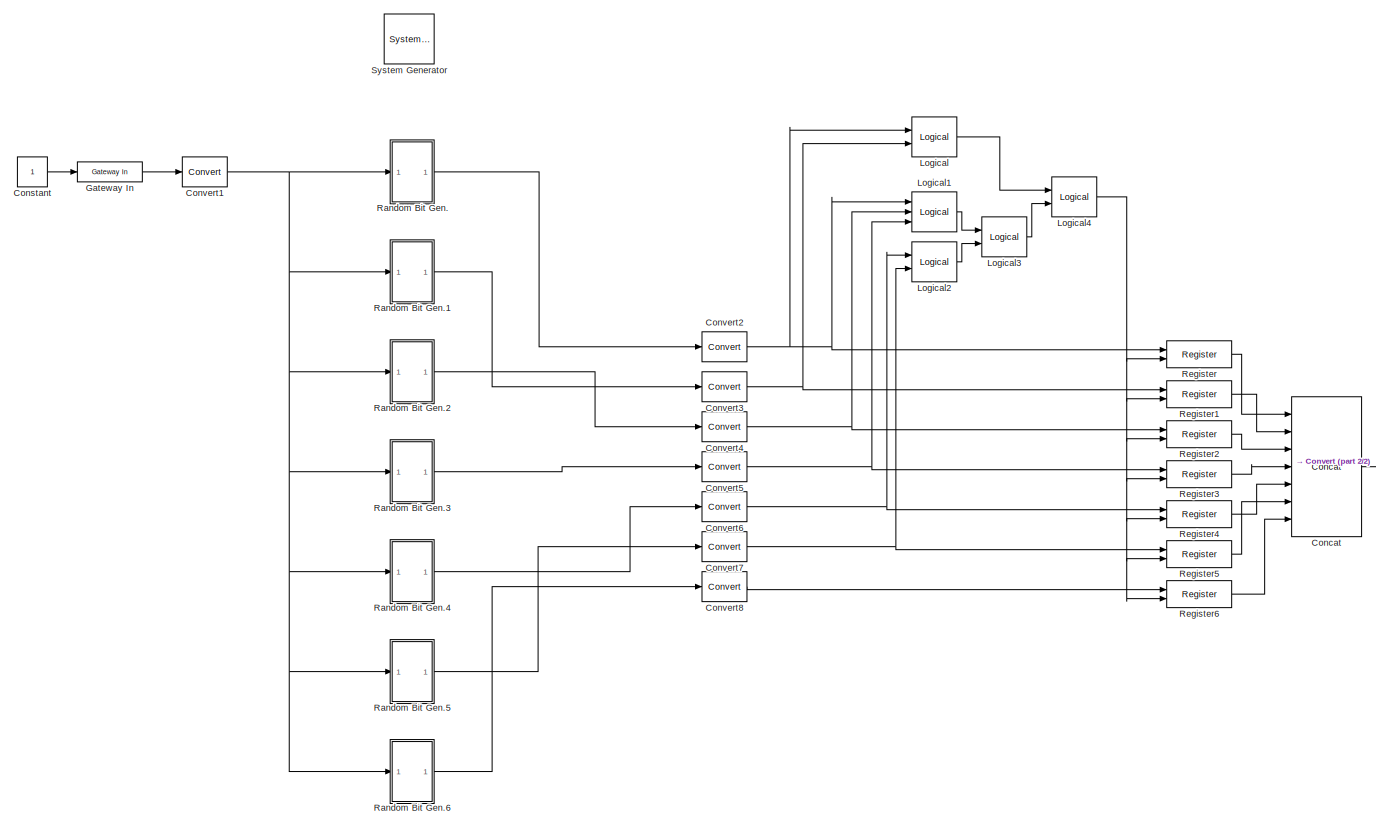
[diagram: root canvas - part 1/2, most of the canvas]
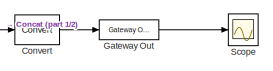
[diagram: root canvas - part 2/2, middle right region]
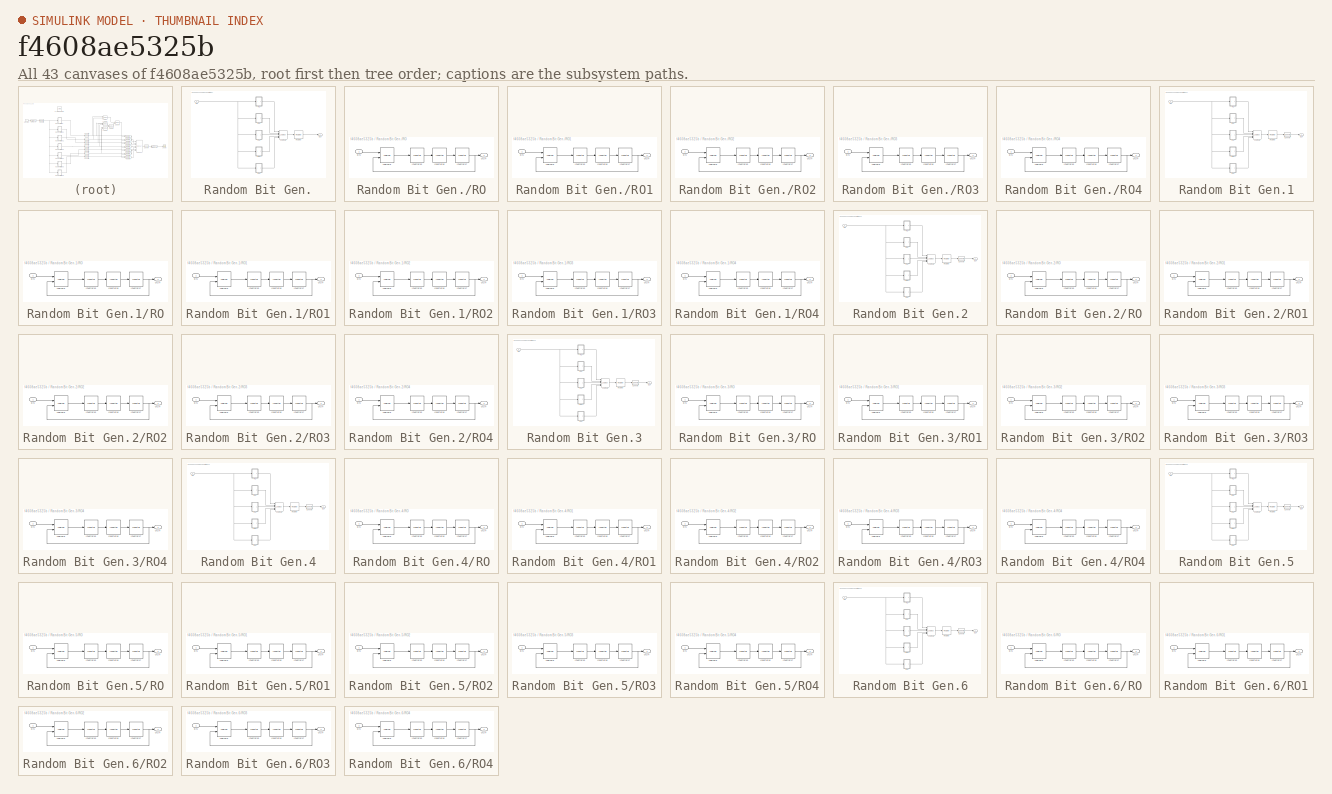
[diagram: thumbnail index - all 43 canvases of the model, root first then tree order]
MODEL slx_f4608ae5325b
KIND model
CONFIG AbsTol = auto
CONFIG EnableMultiTasking = off
CONFIG FixedStep = auto
CONFIG MaxStep = auto
CONFIG MinStep = auto
CONFIG RelTol = 1e-3
CONFIG SampleTimeConstraint = Unconstrained
CONFIG Solver = VariableStepAuto
CONFIG SolverName = VariableStepAuto
CONFIG StartTime = 0.0
CONFIG StopTime = 100.0
BLOCK [Reference]  System Generator  REF=xbsIndex_r4/ System Generator
  AttributesFormatString = System\nGenerator
  Ports = []
  SourceBlock = xbsIndex_r4/ System Generator
  SourceType = Xilinx System Generator Block
  Tag = genX
  UserDataPersistent = on
BLOCK [Reference] Concat  REF=xbsIndex_r4/Concat
  Ports = [7, 1]
  SourceBlock = xbsIndex_r4/Concat
  SourceType = Xilinx Bus Concatenator Block
BLOCK [Constant] Constant
BLOCK [Reference] Convert  REF=xbsIndex_r4/Convert
  Ports = [1, 1]
  SourceBlock = xbsIndex_r4/Convert
  SourceType = Xilinx Type Converter Block
BLOCK [Reference] Convert1  REF=xbsIndex_r4/Convert
  Ports = [1, 1]
  SourceBlock = xbsIndex_r4/Convert
  SourceType = Xilinx Type Converter Block
BLOCK [Reference] Convert2  REF=xbsIndex_r4/Convert
  Ports = [1, 1]
  SourceBlock = xbsIndex_r4/Convert
  SourceType = Xilinx Type Converter Block
BLOCK [Reference] Convert3  REF=xbsIndex_r4/Convert
  Ports = [1, 1]
  SourceBlock = xbsIndex_r4/Convert
  SourceType = Xilinx Type Converter Block
BLOCK [Reference] Convert4  REF=xbsIndex_r4/Convert
  Ports = [1, 1]
  SourceBlock = xbsIndex_r4/Convert
  SourceType = Xilinx Type Converter Block
BLOCK [Reference] Convert5  REF=xbsIndex_r4/Convert
  Ports = [1, 1]
  SourceBlock = xbsIndex_r4/Convert
  SourceType = Xilinx Type Converter Block
BLOCK [Reference] Convert6  REF=xbsIndex_r4/Convert
  Ports = [1, 1]
  SourceBlock = xbsIndex_r4/Convert
  SourceType = Xilinx Type Converter Block
BLOCK [Reference] Convert7  REF=xbsIndex_r4/Convert
  Ports = [1, 1]
  SourceBlock = xbsIndex_r4/Convert
  SourceType = Xilinx Type Converter Block
BLOCK [Reference] Convert8  REF=xbsIndex_r4/Convert
  Ports = [1, 1]
  SourceBlock = xbsIndex_r4/Convert
  SourceType = Xilinx Type Converter Block
BLOCK [Reference] Gateway In  REF=xbsIndex_r4/Gateway In
  Ports = [1, 1]
  SourceBlock = xbsIndex_r4/Gateway In
  SourceType = Xilinx Gateway In Block
BLOCK [Reference] Gateway Out  REF=xbsIndex_r4/Gateway Out
  Ports = [1, 1]
  SourceBlock = xbsIndex_r4/Gateway Out
  SourceType = Xilinx Gateway Out Block
BLOCK [Reference] Logical  REF=xbsIndex_r4/Logical
  Ports = [2, 1]
  SourceBlock = xbsIndex_r4/Logical
  SourceType = Xilinx Logical Block Block
BLOCK [Reference] Logical1  REF=xbsIndex_r4/Logical
  Ports = [3, 1]
  SourceBlock = xbsIndex_r4/Logical
  SourceType = Xilinx Logical Block Block
BLOCK [Reference] Logical2  REF=xbsIndex_r4/Logical
  Ports = [2, 1]
  SourceBlock = xbsIndex_r4/Logical
  SourceType = Xilinx Logical Block Block
BLOCK [Reference] Logical3  REF=xbsIndex_r4/Logical
  Ports = [2, 1]
  SourceBlock = xbsIndex_r4/Logical
  SourceType = Xilinx Logical Block Block
BLOCK [Reference] Logical4  REF=xbsIndex_r4/Logical
  Ports = [2, 1]
  SourceBlock = xbsIndex_r4/Logical
  SourceType = Xilinx Logical Block Block
BLOCK [SubSystem] Random Bit Gen.
  Ports = [1, 1]
  RequestExecContextInheritance = off
BLOCK [Inport] Random Bit Gen./EN
BLOCK [Reference] Random Bit Gen./Logical1  REF=xbsIndex_r4/Logical
  Ports = [5, 1]
  SourceBlock = xbsIndex_r4/Logical
  SourceType = Xilinx Logical Block Block
BLOCK [Outport] Random Bit Gen./OUT
BLOCK [SubSystem] Random Bit Gen./RO
  Ports = [1, 1]
  RequestExecContextInheritance = off
BLOCK [Inport] Random Bit Gen./RO/EN
BLOCK [Reference] Random Bit Gen./RO/Inverter15  REF=xbsIndex_r4/Inverter
  Ports = [1, 1]
  SourceBlock = xbsIndex_r4/Inverter
  SourceType = Xilinx Inverter Block
BLOCK [Reference] Random Bit Gen./RO/Inverter16  REF=xbsIndex_r4/Inverter
  Ports = [1, 1]
  SourceBlock = xbsIndex_r4/Inverter
  SourceType = Xilinx Inverter Block
BLOCK [Reference] Random Bit Gen./RO/Inverter17  REF=xbsIndex_r4/Inverter
  Ports = [1, 1]
  SourceBlock = xbsIndex_r4/Inverter
  SourceType = Xilinx Inverter Block
BLOCK [Reference] Random Bit Gen./RO/Logical6  REF=xbsIndex_r4/Logical
  Ports = [2, 1]
  SourceBlock = xbsIndex_r4/Logical
  SourceType = Xilinx Logical Block Block
BLOCK [Outport] Random Bit Gen./RO/OUT
BLOCK [SubSystem] Random Bit Gen./RO1
  Ports = [1, 1]
  RequestExecContextInheritance = off
BLOCK [Inport] Random Bit Gen./RO1/EN
BLOCK [Reference] Random Bit Gen./RO1/Inverter15  REF=xbsIndex_r4/Inverter
  Ports = [1, 1]
  SourceBlock = xbsIndex_r4/Inverter
  SourceType = Xilinx Inverter Block
BLOCK [Reference] Random Bit Gen./RO1/Inverter16  REF=xbsIndex_r4/Inverter
  Ports = [1, 1]
  SourceBlock = xbsIndex_r4/Inverter
  SourceType = Xilinx Inverter Block
BLOCK [Reference] Random Bit Gen./RO1/Inverter17  REF=xbsIndex_r4/Inverter
  Ports = [1, 1]
  SourceBlock = xbsIndex_r4/Inverter
  SourceType = Xilinx Inverter Block
BLOCK [Reference] Random Bit Gen./RO1/Logical6  REF=xbsIndex_r4/Logical
  Ports = [2, 1]
  SourceBlock = xbsIndex_r4/Logical
  SourceType = Xilinx Logical Block Block
BLOCK [Outport] Random Bit Gen./RO1/OUT
BLOCK [SubSystem] Random Bit Gen./RO2
  Ports = [1, 1]
  RequestExecContextInheritance = off
BLOCK [Inport] Random Bit Gen./RO2/EN
BLOCK [Reference] Random Bit Gen./RO2/Inverter15  REF=xbsIndex_r4/Inverter
  Ports = [1, 1]
  SourceBlock = xbsIndex_r4/Inverter
  SourceType = Xilinx Inverter Block
BLOCK [Reference] Random Bit Gen./RO2/Inverter16  REF=xbsIndex_r4/Inverter
  Ports = [1, 1]
  SourceBlock = xbsIndex_r4/Inverter
  SourceType = Xilinx Inverter Block
BLOCK [Reference] Random Bit Gen./RO2/Inverter17  REF=xbsIndex_r4/Inverter
  Ports = [1, 1]
  SourceBlock = xbsIndex_r4/Inverter
  SourceType = Xilinx Inverter Block
BLOCK [Reference] Random Bit Gen./RO2/Logical6  REF=xbsIndex_r4/Logical
  Ports = [2, 1]
  SourceBlock = xbsIndex_r4/Logical
  SourceType = Xilinx Logical Block Block
BLOCK [Outport] Random Bit Gen./RO2/OUT
BLOCK [SubSystem] Random Bit Gen./RO3
  Ports = [1, 1]
  RequestExecContextInheritance = off
BLOCK [Inport] Random Bit Gen./RO3/EN
BLOCK [Reference] Random Bit Gen./RO3/Inverter15  REF=xbsIndex_r4/Inverter
  Ports = [1, 1]
  SourceBlock = xbsIndex_r4/Inverter
  SourceType = Xilinx Inverter Block
BLOCK [Reference] Random Bit Gen./RO3/Inverter16  REF=xbsIndex_r4/Inverter
  Ports = [1, 1]
  SourceBlock = xbsIndex_r4/Inverter
  SourceType = Xilinx Inverter Block
BLOCK [Reference] Random Bit Gen./RO3/Inverter17  REF=xbsIndex_r4/Inverter
  Ports = [1, 1]
  SourceBlock = xbsIndex_r4/Inverter
  SourceType = Xilinx Inverter Block
BLOCK [Reference] Random Bit Gen./RO3/Logical6  REF=xbsIndex_r4/Logical
  Ports = [2, 1]
  SourceBlock = xbsIndex_r4/Logical
  SourceType = Xilinx Logical Block Block
BLOCK [Outport] Random Bit Gen./RO3/OUT
BLOCK [SubSystem] Random Bit Gen./RO4
  Ports = [1, 1]
  RequestExecContextInheritance = off
BLOCK [Inport] Random Bit Gen./RO4/EN
BLOCK [Reference] Random Bit Gen./RO4/Inverter15  REF=xbsIndex_r4/Inverter
  Ports = [1, 1]
  SourceBlock = xbsIndex_r4/Inverter
  SourceType = Xilinx Inverter Block
BLOCK [Reference] Random Bit Gen./RO4/Inverter16  REF=xbsIndex_r4/Inverter
  Ports = [1, 1]
  SourceBlock = xbsIndex_r4/Inverter
  SourceType = Xilinx Inverter Block
BLOCK [Reference] Random Bit Gen./RO4/Inverter17  REF=xbsIndex_r4/Inverter
  Ports = [1, 1]
  SourceBlock = xbsIndex_r4/Inverter
  SourceType = Xilinx Inverter Block
BLOCK [Reference] Random Bit Gen./RO4/Logical6  REF=xbsIndex_r4/Logical
  Ports = [2, 1]
  SourceBlock = xbsIndex_r4/Logical
  SourceType = Xilinx Logical Block Block
BLOCK [Outport] Random Bit Gen./RO4/OUT
BLOCK [Reference] Random Bit Gen./Register  REF=xbsIndex_r4/Register
  Ports = [1, 1]
  SourceBlock = xbsIndex_r4/Register
  SourceType = Xilinx Register Block
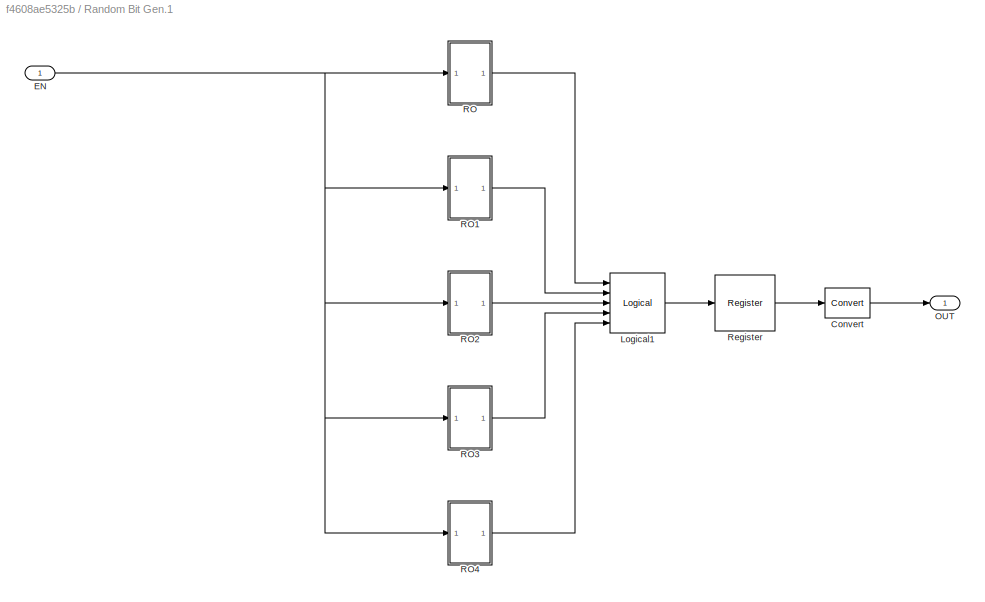
BLOCK [SubSystem] Random Bit Gen.1
  Ports = [1, 1]
  RequestExecContextInheritance = off
BLOCK [Reference] Random Bit Gen.1/Convert  REF=xbsIndex_r4/Convert
  Ports = [1, 1]
  SourceBlock = xbsIndex_r4/Convert
  SourceType = Xilinx Type Converter Block
BLOCK [Inport] Random Bit Gen.1/EN
BLOCK [Reference] Random Bit Gen.1/Logical1  REF=xbsIndex_r4/Logical
  Ports = [5, 1]
  SourceBlock = xbsIndex_r4/Logical
  SourceType = Xilinx Logical Block Block
BLOCK [Outport] Random Bit Gen.1/OUT
BLOCK [SubSystem] Random Bit Gen.1/RO
  Ports = [1, 1]
  RequestExecContextInheritance = off
BLOCK [Inport] Random Bit Gen.1/RO/EN
BLOCK [Reference] Random Bit Gen.1/RO/Inverter15  REF=xbsIndex_r4/Inverter
  Ports = [1, 1]
  SourceBlock = xbsIndex_r4/Inverter
  SourceType = Xilinx Inverter Block
BLOCK [Reference] Random Bit Gen.1/RO/Inverter16  REF=xbsIndex_r4/Inverter
  Ports = [1, 1]
  SourceBlock = xbsIndex_r4/Inverter
  SourceType = Xilinx Inverter Block
BLOCK [Reference] Random Bit Gen.1/RO/Inverter17  REF=xbsIndex_r4/Inverter
  Ports = [1, 1]
  SourceBlock = xbsIndex_r4/Inverter
  SourceType = Xilinx Inverter Block
BLOCK [Reference] Random Bit Gen.1/RO/Logical6  REF=xbsIndex_r4/Logical
  Ports = [2, 1]
  SourceBlock = xbsIndex_r4/Logical
  SourceType = Xilinx Logical Block Block
BLOCK [Outport] Random Bit Gen.1/RO/OUT
BLOCK [SubSystem] Random Bit Gen.1/RO1
  Ports = [1, 1]
  RequestExecContextInheritance = off
BLOCK [Inport] Random Bit Gen.1/RO1/EN
BLOCK [Reference] Random Bit Gen.1/RO1/Inverter15  REF=xbsIndex_r4/Inverter
  Ports = [1, 1]
  SourceBlock = xbsIndex_r4/Inverter
  SourceType = Xilinx Inverter Block
BLOCK [Reference] Random Bit Gen.1/RO1/Inverter16  REF=xbsIndex_r4/Inverter
  Ports = [1, 1]
  SourceBlock = xbsIndex_r4/Inverter
  SourceType = Xilinx Inverter Block
BLOCK [Reference] Random Bit Gen.1/RO1/Inverter17  REF=xbsIndex_r4/Inverter
  Ports = [1, 1]
  SourceBlock = xbsIndex_r4/Inverter
  SourceType = Xilinx Inverter Block
BLOCK [Reference] Random Bit Gen.1/RO1/Logical6  REF=xbsIndex_r4/Logical
  Ports = [2, 1]
  SourceBlock = xbsIndex_r4/Logical
  SourceType = Xilinx Logical Block Block
BLOCK [Outport] Random Bit Gen.1/RO1/OUT
BLOCK [SubSystem] Random Bit Gen.1/RO2
  Ports = [1, 1]
  RequestExecContextInheritance = off
BLOCK [Inport] Random Bit Gen.1/RO2/EN
BLOCK [Reference] Random Bit Gen.1/RO2/Inverter15  REF=xbsIndex_r4/Inverter
  Ports = [1, 1]
  SourceBlock = xbsIndex_r4/Inverter
  SourceType = Xilinx Inverter Block
BLOCK [Reference] Random Bit Gen.1/RO2/Inverter16  REF=xbsIndex_r4/Inverter
  Ports = [1, 1]
  SourceBlock = xbsIndex_r4/Inverter
  SourceType = Xilinx Inverter Block
BLOCK [Reference] Random Bit Gen.1/RO2/Inverter17  REF=xbsIndex_r4/Inverter
  Ports = [1, 1]
  SourceBlock = xbsIndex_r4/Inverter
  SourceType = Xilinx Inverter Block
BLOCK [Reference] Random Bit Gen.1/RO2/Logical6  REF=xbsIndex_r4/Logical
  Ports = [2, 1]
  SourceBlock = xbsIndex_r4/Logical
  SourceType = Xilinx Logical Block Block
BLOCK [Outport] Random Bit Gen.1/RO2/OUT
BLOCK [SubSystem] Random Bit Gen.1/RO3
  Ports = [1, 1]
  RequestExecContextInheritance = off
BLOCK [Inport] Random Bit Gen.1/RO3/EN
BLOCK [Reference] Random Bit Gen.1/RO3/Inverter15  REF=xbsIndex_r4/Inverter
  Ports = [1, 1]
  SourceBlock = xbsIndex_r4/Inverter
  SourceType = Xilinx Inverter Block
BLOCK [Reference] Random Bit Gen.1/RO3/Inverter16  REF=xbsIndex_r4/Inverter
  Ports = [1, 1]
  SourceBlock = xbsIndex_r4/Inverter
  SourceType = Xilinx Inverter Block
BLOCK [Reference] Random Bit Gen.1/RO3/Inverter17  REF=xbsIndex_r4/Inverter
  Ports = [1, 1]
  SourceBlock = xbsIndex_r4/Inverter
  SourceType = Xilinx Inverter Block
BLOCK [Reference] Random Bit Gen.1/RO3/Logical6  REF=xbsIndex_r4/Logical
  Ports = [2, 1]
  SourceBlock = xbsIndex_r4/Logical
  SourceType = Xilinx Logical Block Block
BLOCK [Outport] Random Bit Gen.1/RO3/OUT
BLOCK [SubSystem] Random Bit Gen.1/RO4
  Ports = [1, 1]
  RequestExecContextInheritance = off
BLOCK [Inport] Random Bit Gen.1/RO4/EN
BLOCK [Reference] Random Bit Gen.1/RO4/Inverter15  REF=xbsIndex_r4/Inverter
  Ports = [1, 1]
  SourceBlock = xbsIndex_r4/Inverter
  SourceType = Xilinx Inverter Block
BLOCK [Reference] Random Bit Gen.1/RO4/Inverter16  REF=xbsIndex_r4/Inverter
  Ports = [1, 1]
  SourceBlock = xbsIndex_r4/Inverter
  SourceType = Xilinx Inverter Block
BLOCK [Reference] Random Bit Gen.1/RO4/Inverter17  REF=xbsIndex_r4/Inverter
  Ports = [1, 1]
  SourceBlock = xbsIndex_r4/Inverter
  SourceType = Xilinx Inverter Block
BLOCK [Reference] Random Bit Gen.1/RO4/Logical6  REF=xbsIndex_r4/Logical
  Ports = [2, 1]
  SourceBlock = xbsIndex_r4/Logical
  SourceType = Xilinx Logical Block Block
BLOCK [Outport] Random Bit Gen.1/RO4/OUT
BLOCK [Reference] Random Bit Gen.1/Register  REF=xbsIndex_r4/Register
  Ports = [1, 1]
  SourceBlock = xbsIndex_r4/Register
  SourceType = Xilinx Register Block
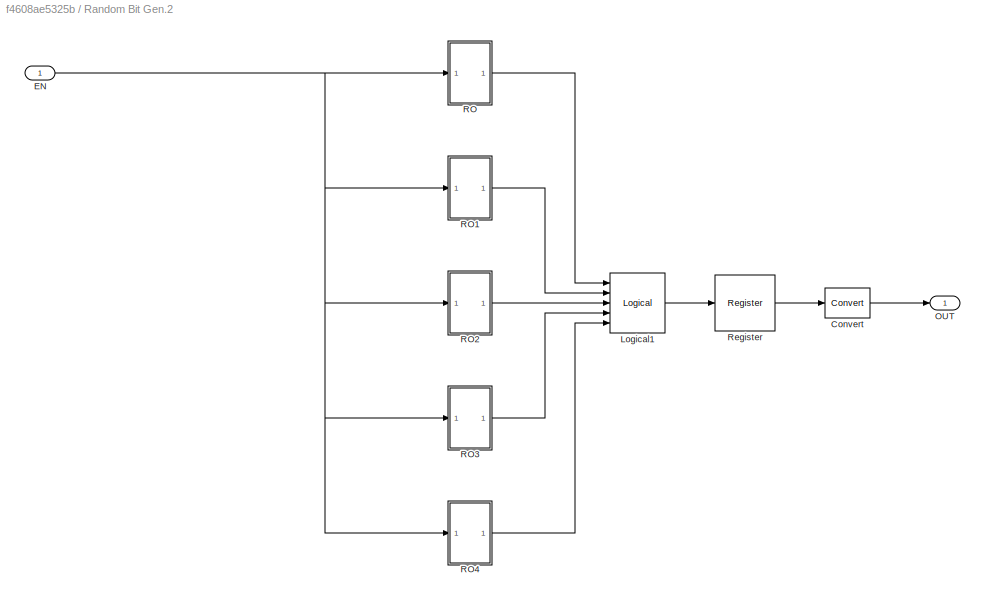
BLOCK [SubSystem] Random Bit Gen.2
  Ports = [1, 1]
  RequestExecContextInheritance = off
BLOCK [Reference] Random Bit Gen.2/Convert  REF=xbsIndex_r4/Convert
  Ports = [1, 1]
  SourceBlock = xbsIndex_r4/Convert
  SourceType = Xilinx Type Converter Block
BLOCK [Inport] Random Bit Gen.2/EN
BLOCK [Reference] Random Bit Gen.2/Logical1  REF=xbsIndex_r4/Logical
  Ports = [5, 1]
  SourceBlock = xbsIndex_r4/Logical
  SourceType = Xilinx Logical Block Block
BLOCK [Outport] Random Bit Gen.2/OUT
BLOCK [SubSystem] Random Bit Gen.2/RO
  Ports = [1, 1]
  RequestExecContextInheritance = off
BLOCK [Inport] Random Bit Gen.2/RO/EN
BLOCK [Reference] Random Bit Gen.2/RO/Inverter15  REF=xbsIndex_r4/Inverter
  Ports = [1, 1]
  SourceBlock = xbsIndex_r4/Inverter
  SourceType = Xilinx Inverter Block
BLOCK [Reference] Random Bit Gen.2/RO/Inverter16  REF=xbsIndex_r4/Inverter
  Ports = [1, 1]
  SourceBlock = xbsIndex_r4/Inverter
  SourceType = Xilinx Inverter Block
BLOCK [Reference] Random Bit Gen.2/RO/Inverter17  REF=xbsIndex_r4/Inverter
  Ports = [1, 1]
  SourceBlock = xbsIndex_r4/Inverter
  SourceType = Xilinx Inverter Block
BLOCK [Reference] Random Bit Gen.2/RO/Logical6  REF=xbsIndex_r4/Logical
  Ports = [2, 1]
  SourceBlock = xbsIndex_r4/Logical
  SourceType = Xilinx Logical Block Block
BLOCK [Outport] Random Bit Gen.2/RO/OUT
BLOCK [SubSystem] Random Bit Gen.2/RO1
  Ports = [1, 1]
  RequestExecContextInheritance = off
BLOCK [Inport] Random Bit Gen.2/RO1/EN
BLOCK [Reference] Random Bit Gen.2/RO1/Inverter15  REF=xbsIndex_r4/Inverter
  Ports = [1, 1]
  SourceBlock = xbsIndex_r4/Inverter
  SourceType = Xilinx Inverter Block
BLOCK [Reference] Random Bit Gen.2/RO1/Inverter16  REF=xbsIndex_r4/Inverter
  Ports = [1, 1]
  SourceBlock = xbsIndex_r4/Inverter
  SourceType = Xilinx Inverter Block
BLOCK [Reference] Random Bit Gen.2/RO1/Inverter17  REF=xbsIndex_r4/Inverter
  Ports = [1, 1]
  SourceBlock = xbsIndex_r4/Inverter
  SourceType = Xilinx Inverter Block
BLOCK [Reference] Random Bit Gen.2/RO1/Logical6  REF=xbsIndex_r4/Logical
  Ports = [2, 1]
  SourceBlock = xbsIndex_r4/Logical
  SourceType = Xilinx Logical Block Block
BLOCK [Outport] Random Bit Gen.2/RO1/OUT
BLOCK [SubSystem] Random Bit Gen.2/RO2
  Ports = [1, 1]
  RequestExecContextInheritance = off
BLOCK [Inport] Random Bit Gen.2/RO2/EN
BLOCK [Reference] Random Bit Gen.2/RO2/Inverter15  REF=xbsIndex_r4/Inverter
  Ports = [1, 1]
  SourceBlock = xbsIndex_r4/Inverter
  SourceType = Xilinx Inverter Block
BLOCK [Reference] Random Bit Gen.2/RO2/Inverter16  REF=xbsIndex_r4/Inverter
  Ports = [1, 1]
  SourceBlock = xbsIndex_r4/Inverter
  SourceType = Xilinx Inverter Block
BLOCK [Reference] Random Bit Gen.2/RO2/Inverter17  REF=xbsIndex_r4/Inverter
  Ports = [1, 1]
  SourceBlock = xbsIndex_r4/Inverter
  SourceType = Xilinx Inverter Block
BLOCK [Reference] Random Bit Gen.2/RO2/Logical6  REF=xbsIndex_r4/Logical
  Ports = [2, 1]
  SourceBlock = xbsIndex_r4/Logical
  SourceType = Xilinx Logical Block Block
BLOCK [Outport] Random Bit Gen.2/RO2/OUT
BLOCK [SubSystem] Random Bit Gen.2/RO3
  Ports = [1, 1]
  RequestExecContextInheritance = off
BLOCK [Inport] Random Bit Gen.2/RO3/EN
BLOCK [Reference] Random Bit Gen.2/RO3/Inverter15  REF=xbsIndex_r4/Inverter
  Ports = [1, 1]
  SourceBlock = xbsIndex_r4/Inverter
  SourceType = Xilinx Inverter Block
BLOCK [Reference] Random Bit Gen.2/RO3/Inverter16  REF=xbsIndex_r4/Inverter
  Ports = [1, 1]
  SourceBlock = xbsIndex_r4/Inverter
  SourceType = Xilinx Inverter Block
BLOCK [Reference] Random Bit Gen.2/RO3/Inverter17  REF=xbsIndex_r4/Inverter
  Ports = [1, 1]
  SourceBlock = xbsIndex_r4/Inverter
  SourceType = Xilinx Inverter Block
BLOCK [Reference] Random Bit Gen.2/RO3/Logical6  REF=xbsIndex_r4/Logical
  Ports = [2, 1]
  SourceBlock = xbsIndex_r4/Logical
  SourceType = Xilinx Logical Block Block
BLOCK [Outport] Random Bit Gen.2/RO3/OUT
BLOCK [SubSystem] Random Bit Gen.2/RO4
  Ports = [1, 1]
  RequestExecContextInheritance = off
BLOCK [Inport] Random Bit Gen.2/RO4/EN
BLOCK [Reference] Random Bit Gen.2/RO4/Inverter15  REF=xbsIndex_r4/Inverter
  Ports = [1, 1]
  SourceBlock = xbsIndex_r4/Inverter
  SourceType = Xilinx Inverter Block
BLOCK [Reference] Random Bit Gen.2/RO4/Inverter16  REF=xbsIndex_r4/Inverter
  Ports = [1, 1]
  SourceBlock = xbsIndex_r4/Inverter
  SourceType = Xilinx Inverter Block
BLOCK [Reference] Random Bit Gen.2/RO4/Inverter17  REF=xbsIndex_r4/Inverter
  Ports = [1, 1]
  SourceBlock = xbsIndex_r4/Inverter
  SourceType = Xilinx Inverter Block
BLOCK [Reference] Random Bit Gen.2/RO4/Logical6  REF=xbsIndex_r4/Logical
  Ports = [2, 1]
  SourceBlock = xbsIndex_r4/Logical
  SourceType = Xilinx Logical Block Block
BLOCK [Outport] Random Bit Gen.2/RO4/OUT
BLOCK [Reference] Random Bit Gen.2/Register  REF=xbsIndex_r4/Register
  Ports = [1, 1]
  SourceBlock = xbsIndex_r4/Register
  SourceType = Xilinx Register Block
BLOCK [SubSystem] Random Bit Gen.3
  Ports = [1, 1]
  RequestExecContextInheritance = off
BLOCK [Reference] Random Bit Gen.3/Convert  REF=xbsIndex_r4/Convert
  Ports = [1, 1]
  SourceBlock = xbsIndex_r4/Convert
  SourceType = Xilinx Type Converter Block
BLOCK [Inport] Random Bit Gen.3/EN
BLOCK [Reference] Random Bit Gen.3/Logical1  REF=xbsIndex_r4/Logical
  Ports = [5, 1]
  SourceBlock = xbsIndex_r4/Logical
  SourceType = Xilinx Logical Block Block
BLOCK [Outport] Random Bit Gen.3/OUT
BLOCK [SubSystem] Random Bit Gen.3/RO
  Ports = [1, 1]
  RequestExecContextInheritance = off
BLOCK [Inport] Random Bit Gen.3/RO/EN
BLOCK [Reference] Random Bit Gen.3/RO/Inverter15  REF=xbsIndex_r4/Inverter
  Ports = [1, 1]
  SourceBlock = xbsIndex_r4/Inverter
  SourceType = Xilinx Inverter Block
BLOCK [Reference] Random Bit Gen.3/RO/Inverter16  REF=xbsIndex_r4/Inverter
  Ports = [1, 1]
  SourceBlock = xbsIndex_r4/Inverter
  SourceType = Xilinx Inverter Block
BLOCK [Reference] Random Bit Gen.3/RO/Inverter17  REF=xbsIndex_r4/Inverter
  Ports = [1, 1]
  SourceBlock = xbsIndex_r4/Inverter
  SourceType = Xilinx Inverter Block
BLOCK [Reference] Random Bit Gen.3/RO/Logical6  REF=xbsIndex_r4/Logical
  Ports = [2, 1]
  SourceBlock = xbsIndex_r4/Logical
  SourceType = Xilinx Logical Block Block
BLOCK [Outport] Random Bit Gen.3/RO/OUT
BLOCK [SubSystem] Random Bit Gen.3/RO1
  Ports = [1, 1]
  RequestExecContextInheritance = off
BLOCK [Inport] Random Bit Gen.3/RO1/EN
BLOCK [Reference] Random Bit Gen.3/RO1/Inverter15  REF=xbsIndex_r4/Inverter
  Ports = [1, 1]
  SourceBlock = xbsIndex_r4/Inverter
  SourceType = Xilinx Inverter Block
BLOCK [Reference] Random Bit Gen.3/RO1/Inverter16  REF=xbsIndex_r4/Inverter
  Ports = [1, 1]
  SourceBlock = xbsIndex_r4/Inverter
  SourceType = Xilinx Inverter Block
BLOCK [Reference] Random Bit Gen.3/RO1/Inverter17  REF=xbsIndex_r4/Inverter
  Ports = [1, 1]
  SourceBlock = xbsIndex_r4/Inverter
  SourceType = Xilinx Inverter Block
BLOCK [Reference] Random Bit Gen.3/RO1/Logical6  REF=xbsIndex_r4/Logical
  Ports = [2, 1]
  SourceBlock = xbsIndex_r4/Logical
  SourceType = Xilinx Logical Block Block
BLOCK [Outport] Random Bit Gen.3/RO1/OUT
BLOCK [SubSystem] Random Bit Gen.3/RO2
  Ports = [1, 1]
  RequestExecContextInheritance = off
BLOCK [Inport] Random Bit Gen.3/RO2/EN
BLOCK [Reference] Random Bit Gen.3/RO2/Inverter15  REF=xbsIndex_r4/Inverter
  Ports = [1, 1]
  SourceBlock = xbsIndex_r4/Inverter
  SourceType = Xilinx Inverter Block
BLOCK [Reference] Random Bit Gen.3/RO2/Inverter16  REF=xbsIndex_r4/Inverter
  Ports = [1, 1]
  SourceBlock = xbsIndex_r4/Inverter
  SourceType = Xilinx Inverter Block
BLOCK [Reference] Random Bit Gen.3/RO2/Inverter17  REF=xbsIndex_r4/Inverter
  Ports = [1, 1]
  SourceBlock = xbsIndex_r4/Inverter
  SourceType = Xilinx Inverter Block
BLOCK [Reference] Random Bit Gen.3/RO2/Logical6  REF=xbsIndex_r4/Logical
  Ports = [2, 1]
  SourceBlock = xbsIndex_r4/Logical
  SourceType = Xilinx Logical Block Block
BLOCK [Outport] Random Bit Gen.3/RO2/OUT
BLOCK [SubSystem] Random Bit Gen.3/RO3
  Ports = [1, 1]
  RequestExecContextInheritance = off
BLOCK [Inport] Random Bit Gen.3/RO3/EN
BLOCK [Reference] Random Bit Gen.3/RO3/Inverter15  REF=xbsIndex_r4/Inverter
  Ports = [1, 1]
  SourceBlock = xbsIndex_r4/Inverter
  SourceType = Xilinx Inverter Block
BLOCK [Reference] Random Bit Gen.3/RO3/Inverter16  REF=xbsIndex_r4/Inverter
  Ports = [1, 1]
  SourceBlock = xbsIndex_r4/Inverter
  SourceType = Xilinx Inverter Block
BLOCK [Reference] Random Bit Gen.3/RO3/Inverter17  REF=xbsIndex_r4/Inverter
  Ports = [1, 1]
  SourceBlock = xbsIndex_r4/Inverter
  SourceType = Xilinx Inverter Block
BLOCK [Reference] Random Bit Gen.3/RO3/Logical6  REF=xbsIndex_r4/Logical
  Ports = [2, 1]
  SourceBlock = xbsIndex_r4/Logical
  SourceType = Xilinx Logical Block Block
BLOCK [Outport] Random Bit Gen.3/RO3/OUT
BLOCK [SubSystem] Random Bit Gen.3/RO4
  Ports = [1, 1]
  RequestExecContextInheritance = off
BLOCK [Inport] Random Bit Gen.3/RO4/EN
BLOCK [Reference] Random Bit Gen.3/RO4/Inverter15  REF=xbsIndex_r4/Inverter
  Ports = [1, 1]
  SourceBlock = xbsIndex_r4/Inverter
  SourceType = Xilinx Inverter Block
BLOCK [Reference] Random Bit Gen.3/RO4/Inverter16  REF=xbsIndex_r4/Inverter
  Ports = [1, 1]
  SourceBlock = xbsIndex_r4/Inverter
  SourceType = Xilinx Inverter Block
BLOCK [Reference] Random Bit Gen.3/RO4/Inverter17  REF=xbsIndex_r4/Inverter
  Ports = [1, 1]
  SourceBlock = xbsIndex_r4/Inverter
  SourceType = Xilinx Inverter Block
BLOCK [Reference] Random Bit Gen.3/RO4/Logical6  REF=xbsIndex_r4/Logical
  Ports = [2, 1]
  SourceBlock = xbsIndex_r4/Logical
  SourceType = Xilinx Logical Block Block
BLOCK [Outport] Random Bit Gen.3/RO4/OUT
BLOCK [Reference] Random Bit Gen.3/Register  REF=xbsIndex_r4/Register
  Ports = [1, 1]
  SourceBlock = xbsIndex_r4/Register
  SourceType = Xilinx Register Block
BLOCK [SubSystem] Random Bit Gen.4
  Ports = [1, 1]
  RequestExecContextInheritance = off
BLOCK [Reference] Random Bit Gen.4/Convert  REF=xbsIndex_r4/Convert
  Ports = [1, 1]
  SourceBlock = xbsIndex_r4/Convert
  SourceType = Xilinx Type Converter Block
BLOCK [Inport] Random Bit Gen.4/EN
BLOCK [Reference] Random Bit Gen.4/Logical1  REF=xbsIndex_r4/Logical
  Ports = [5, 1]
  SourceBlock = xbsIndex_r4/Logical
  SourceType = Xilinx Logical Block Block
BLOCK [Outport] Random Bit Gen.4/OUT
BLOCK [SubSystem] Random Bit Gen.4/RO
  Ports = [1, 1]
  RequestExecContextInheritance = off
BLOCK [Inport] Random Bit Gen.4/RO/EN
BLOCK [Reference] Random Bit Gen.4/RO/Inverter15  REF=xbsIndex_r4/Inverter
  Ports = [1, 1]
  SourceBlock = xbsIndex_r4/Inverter
  SourceType = Xilinx Inverter Block
BLOCK [Reference] Random Bit Gen.4/RO/Inverter16  REF=xbsIndex_r4/Inverter
  Ports = [1, 1]
  SourceBlock = xbsIndex_r4/Inverter
  SourceType = Xilinx Inverter Block
BLOCK [Reference] Random Bit Gen.4/RO/Inverter17  REF=xbsIndex_r4/Inverter
  Ports = [1, 1]
  SourceBlock = xbsIndex_r4/Inverter
  SourceType = Xilinx Inverter Block
BLOCK [Reference] Random Bit Gen.4/RO/Logical6  REF=xbsIndex_r4/Logical
  Ports = [2, 1]
  SourceBlock = xbsIndex_r4/Logical
  SourceType = Xilinx Logical Block Block
BLOCK [Outport] Random Bit Gen.4/RO/OUT
BLOCK [SubSystem] Random Bit Gen.4/RO1
  Ports = [1, 1]
  RequestExecContextInheritance = off
BLOCK [Inport] Random Bit Gen.4/RO1/EN
BLOCK [Reference] Random Bit Gen.4/RO1/Inverter15  REF=xbsIndex_r4/Inverter
  Ports = [1, 1]
  SourceBlock = xbsIndex_r4/Inverter
  SourceType = Xilinx Inverter Block
BLOCK [Reference] Random Bit Gen.4/RO1/Inverter16  REF=xbsIndex_r4/Inverter
  Ports = [1, 1]
  SourceBlock = xbsIndex_r4/Inverter
  SourceType = Xilinx Inverter Block
BLOCK [Reference] Random Bit Gen.4/RO1/Inverter17  REF=xbsIndex_r4/Inverter
  Ports = [1, 1]
  SourceBlock = xbsIndex_r4/Inverter
  SourceType = Xilinx Inverter Block
BLOCK [Reference] Random Bit Gen.4/RO1/Logical6  REF=xbsIndex_r4/Logical
  Ports = [2, 1]
  SourceBlock = xbsIndex_r4/Logical
  SourceType = Xilinx Logical Block Block
BLOCK [Outport] Random Bit Gen.4/RO1/OUT
BLOCK [SubSystem] Random Bit Gen.4/RO2
  Ports = [1, 1]
  RequestExecContextInheritance = off
BLOCK [Inport] Random Bit Gen.4/RO2/EN
BLOCK [Reference] Random Bit Gen.4/RO2/Inverter15  REF=xbsIndex_r4/Inverter
  Ports = [1, 1]
  SourceBlock = xbsIndex_r4/Inverter
  SourceType = Xilinx Inverter Block
BLOCK [Reference] Random Bit Gen.4/RO2/Inverter16  REF=xbsIndex_r4/Inverter
  Ports = [1, 1]
  SourceBlock = xbsIndex_r4/Inverter
  SourceType = Xilinx Inverter Block
BLOCK [Reference] Random Bit Gen.4/RO2/Inverter17  REF=xbsIndex_r4/Inverter
  Ports = [1, 1]
  SourceBlock = xbsIndex_r4/Inverter
  SourceType = Xilinx Inverter Block
BLOCK [Reference] Random Bit Gen.4/RO2/Logical6  REF=xbsIndex_r4/Logical
  Ports = [2, 1]
  SourceBlock = xbsIndex_r4/Logical
  SourceType = Xilinx Logical Block Block
BLOCK [Outport] Random Bit Gen.4/RO2/OUT
BLOCK [SubSystem] Random Bit Gen.4/RO3
  Ports = [1, 1]
  RequestExecContextInheritance = off
BLOCK [Inport] Random Bit Gen.4/RO3/EN
BLOCK [Reference] Random Bit Gen.4/RO3/Inverter15  REF=xbsIndex_r4/Inverter
  Ports = [1, 1]
  SourceBlock = xbsIndex_r4/Inverter
  SourceType = Xilinx Inverter Block
BLOCK [Reference] Random Bit Gen.4/RO3/Inverter16  REF=xbsIndex_r4/Inverter
  Ports = [1, 1]
  SourceBlock = xbsIndex_r4/Inverter
  SourceType = Xilinx Inverter Block
BLOCK [Reference] Random Bit Gen.4/RO3/Inverter17  REF=xbsIndex_r4/Inverter
  Ports = [1, 1]
  SourceBlock = xbsIndex_r4/Inverter
  SourceType = Xilinx Inverter Block
BLOCK [Reference] Random Bit Gen.4/RO3/Logical6  REF=xbsIndex_r4/Logical
  Ports = [2, 1]
  SourceBlock = xbsIndex_r4/Logical
  SourceType = Xilinx Logical Block Block
BLOCK [Outport] Random Bit Gen.4/RO3/OUT
BLOCK [SubSystem] Random Bit Gen.4/RO4
  Ports = [1, 1]
  RequestExecContextInheritance = off
BLOCK [Inport] Random Bit Gen.4/RO4/EN
BLOCK [Reference] Random Bit Gen.4/RO4/Inverter15  REF=xbsIndex_r4/Inverter
  Ports = [1, 1]
  SourceBlock = xbsIndex_r4/Inverter
  SourceType = Xilinx Inverter Block
BLOCK [Reference] Random Bit Gen.4/RO4/Inverter16  REF=xbsIndex_r4/Inverter
  Ports = [1, 1]
  SourceBlock = xbsIndex_r4/Inverter
  SourceType = Xilinx Inverter Block
BLOCK [Reference] Random Bit Gen.4/RO4/Inverter17  REF=xbsIndex_r4/Inverter
  Ports = [1, 1]
  SourceBlock = xbsIndex_r4/Inverter
  SourceType = Xilinx Inverter Block
BLOCK [Reference] Random Bit Gen.4/RO4/Logical6  REF=xbsIndex_r4/Logical
  Ports = [2, 1]
  SourceBlock = xbsIndex_r4/Logical
  SourceType = Xilinx Logical Block Block
BLOCK [Outport] Random Bit Gen.4/RO4/OUT
BLOCK [Reference] Random Bit Gen.4/Register  REF=xbsIndex_r4/Register
  Ports = [1, 1]
  SourceBlock = xbsIndex_r4/Register
  SourceType = Xilinx Register Block
BLOCK [SubSystem] Random Bit Gen.5
  Ports = [1, 1]
  RequestExecContextInheritance = off
BLOCK [Reference] Random Bit Gen.5/Convert  REF=xbsIndex_r4/Convert
  Ports = [1, 1]
  SourceBlock = xbsIndex_r4/Convert
  SourceType = Xilinx Type Converter Block
BLOCK [Inport] Random Bit Gen.5/EN
BLOCK [Reference] Random Bit Gen.5/Logical1  REF=xbsIndex_r4/Logical
  Ports = [5, 1]
  SourceBlock = xbsIndex_r4/Logical
  SourceType = Xilinx Logical Block Block
BLOCK [Outport] Random Bit Gen.5/OUT
BLOCK [SubSystem] Random Bit Gen.5/RO
  Ports = [1, 1]
  RequestExecContextInheritance = off
BLOCK [Inport] Random Bit Gen.5/RO/EN
BLOCK [Reference] Random Bit Gen.5/RO/Inverter15  REF=xbsIndex_r4/Inverter
  Ports = [1, 1]
  SourceBlock = xbsIndex_r4/Inverter
  SourceType = Xilinx Inverter Block
BLOCK [Reference] Random Bit Gen.5/RO/Inverter16  REF=xbsIndex_r4/Inverter
  Ports = [1, 1]
  SourceBlock = xbsIndex_r4/Inverter
  SourceType = Xilinx Inverter Block
BLOCK [Reference] Random Bit Gen.5/RO/Inverter17  REF=xbsIndex_r4/Inverter
  Ports = [1, 1]
  SourceBlock = xbsIndex_r4/Inverter
  SourceType = Xilinx Inverter Block
BLOCK [Reference] Random Bit Gen.5/RO/Logical6  REF=xbsIndex_r4/Logical
  Ports = [2, 1]
  SourceBlock = xbsIndex_r4/Logical
  SourceType = Xilinx Logical Block Block
BLOCK [Outport] Random Bit Gen.5/RO/OUT
BLOCK [SubSystem] Random Bit Gen.5/RO1
  Ports = [1, 1]
  RequestExecContextInheritance = off
BLOCK [Inport] Random Bit Gen.5/RO1/EN
BLOCK [Reference] Random Bit Gen.5/RO1/Inverter15  REF=xbsIndex_r4/Inverter
  Ports = [1, 1]
  SourceBlock = xbsIndex_r4/Inverter
  SourceType = Xilinx Inverter Block
BLOCK [Reference] Random Bit Gen.5/RO1/Inverter16  REF=xbsIndex_r4/Inverter
  Ports = [1, 1]
  SourceBlock = xbsIndex_r4/Inverter
  SourceType = Xilinx Inverter Block
BLOCK [Reference] Random Bit Gen.5/RO1/Inverter17  REF=xbsIndex_r4/Inverter
  Ports = [1, 1]
  SourceBlock = xbsIndex_r4/Inverter
  SourceType = Xilinx Inverter Block
BLOCK [Reference] Random Bit Gen.5/RO1/Logical6  REF=xbsIndex_r4/Logical
  Ports = [2, 1]
  SourceBlock = xbsIndex_r4/Logical
  SourceType = Xilinx Logical Block Block
BLOCK [Outport] Random Bit Gen.5/RO1/OUT
BLOCK [SubSystem] Random Bit Gen.5/RO2
  Ports = [1, 1]
  RequestExecContextInheritance = off
BLOCK [Inport] Random Bit Gen.5/RO2/EN
BLOCK [Reference] Random Bit Gen.5/RO2/Inverter15  REF=xbsIndex_r4/Inverter
  Ports = [1, 1]
  SourceBlock = xbsIndex_r4/Inverter
  SourceType = Xilinx Inverter Block
BLOCK [Reference] Random Bit Gen.5/RO2/Inverter16  REF=xbsIndex_r4/Inverter
  Ports = [1, 1]
  SourceBlock = xbsIndex_r4/Inverter
  SourceType = Xilinx Inverter Block
BLOCK [Reference] Random Bit Gen.5/RO2/Inverter17  REF=xbsIndex_r4/Inverter
  Ports = [1, 1]
  SourceBlock = xbsIndex_r4/Inverter
  SourceType = Xilinx Inverter Block
BLOCK [Reference] Random Bit Gen.5/RO2/Logical6  REF=xbsIndex_r4/Logical
  Ports = [2, 1]
  SourceBlock = xbsIndex_r4/Logical
  SourceType = Xilinx Logical Block Block
BLOCK [Outport] Random Bit Gen.5/RO2/OUT
BLOCK [SubSystem] Random Bit Gen.5/RO3
  Ports = [1, 1]
  RequestExecContextInheritance = off
BLOCK [Inport] Random Bit Gen.5/RO3/EN
BLOCK [Reference] Random Bit Gen.5/RO3/Inverter15  REF=xbsIndex_r4/Inverter
  Ports = [1, 1]
  SourceBlock = xbsIndex_r4/Inverter
  SourceType = Xilinx Inverter Block
BLOCK [Reference] Random Bit Gen.5/RO3/Inverter16  REF=xbsIndex_r4/Inverter
  Ports = [1, 1]
  SourceBlock = xbsIndex_r4/Inverter
  SourceType = Xilinx Inverter Block
BLOCK [Reference] Random Bit Gen.5/RO3/Inverter17  REF=xbsIndex_r4/Inverter
  Ports = [1, 1]
  SourceBlock = xbsIndex_r4/Inverter
  SourceType = Xilinx Inverter Block
BLOCK [Reference] Random Bit Gen.5/RO3/Logical6  REF=xbsIndex_r4/Logical
  Ports = [2, 1]
  SourceBlock = xbsIndex_r4/Logical
  SourceType = Xilinx Logical Block Block
BLOCK [Outport] Random Bit Gen.5/RO3/OUT
BLOCK [SubSystem] Random Bit Gen.5/RO4
  Ports = [1, 1]
  RequestExecContextInheritance = off
BLOCK [Inport] Random Bit Gen.5/RO4/EN
BLOCK [Reference] Random Bit Gen.5/RO4/Inverter15  REF=xbsIndex_r4/Inverter
  Ports = [1, 1]
  SourceBlock = xbsIndex_r4/Inverter
  SourceType = Xilinx Inverter Block
BLOCK [Reference] Random Bit Gen.5/RO4/Inverter16  REF=xbsIndex_r4/Inverter
  Ports = [1, 1]
  SourceBlock = xbsIndex_r4/Inverter
  SourceType = Xilinx Inverter Block
BLOCK [Reference] Random Bit Gen.5/RO4/Inverter17  REF=xbsIndex_r4/Inverter
  Ports = [1, 1]
  SourceBlock = xbsIndex_r4/Inverter
  SourceType = Xilinx Inverter Block
BLOCK [Reference] Random Bit Gen.5/RO4/Logical6  REF=xbsIndex_r4/Logical
  Ports = [2, 1]
  SourceBlock = xbsIndex_r4/Logical
  SourceType = Xilinx Logical Block Block
BLOCK [Outport] Random Bit Gen.5/RO4/OUT
BLOCK [Reference] Random Bit Gen.5/Register  REF=xbsIndex_r4/Register
  Ports = [1, 1]
  SourceBlock = xbsIndex_r4/Register
  SourceType = Xilinx Register Block
BLOCK [SubSystem] Random Bit Gen.6
  Ports = [1, 1]
  RequestExecContextInheritance = off
BLOCK [Reference] Random Bit Gen.6/Convert  REF=xbsIndex_r4/Convert
  Ports = [1, 1]
  SourceBlock = xbsIndex_r4/Convert
  SourceType = Xilinx Type Converter Block
BLOCK [Inport] Random Bit Gen.6/EN
BLOCK [Reference] Random Bit Gen.6/Logical1  REF=xbsIndex_r4/Logical
  Ports = [5, 1]
  SourceBlock = xbsIndex_r4/Logical
  SourceType = Xilinx Logical Block Block
BLOCK [Outport] Random Bit Gen.6/OUT
BLOCK [SubSystem] Random Bit Gen.6/RO
  Ports = [1, 1]
  RequestExecContextInheritance = off
BLOCK [Inport] Random Bit Gen.6/RO/EN
BLOCK [Reference] Random Bit Gen.6/RO/Inverter15  REF=xbsIndex_r4/Inverter
  Ports = [1, 1]
  SourceBlock = xbsIndex_r4/Inverter
  SourceType = Xilinx Inverter Block
BLOCK [Reference] Random Bit Gen.6/RO/Inverter16  REF=xbsIndex_r4/Inverter
  Ports = [1, 1]
  SourceBlock = xbsIndex_r4/Inverter
  SourceType = Xilinx Inverter Block
BLOCK [Reference] Random Bit Gen.6/RO/Inverter17  REF=xbsIndex_r4/Inverter
  Ports = [1, 1]
  SourceBlock = xbsIndex_r4/Inverter
  SourceType = Xilinx Inverter Block
BLOCK [Reference] Random Bit Gen.6/RO/Logical6  REF=xbsIndex_r4/Logical
  Ports = [2, 1]
  SourceBlock = xbsIndex_r4/Logical
  SourceType = Xilinx Logical Block Block
BLOCK [Outport] Random Bit Gen.6/RO/OUT
BLOCK [SubSystem] Random Bit Gen.6/RO1
  Ports = [1, 1]
  RequestExecContextInheritance = off
BLOCK [Inport] Random Bit Gen.6/RO1/EN
BLOCK [Reference] Random Bit Gen.6/RO1/Inverter15  REF=xbsIndex_r4/Inverter
  Ports = [1, 1]
  SourceBlock = xbsIndex_r4/Inverter
  SourceType = Xilinx Inverter Block
BLOCK [Reference] Random Bit Gen.6/RO1/Inverter16  REF=xbsIndex_r4/Inverter
  Ports = [1, 1]
  SourceBlock = xbsIndex_r4/Inverter
  SourceType = Xilinx Inverter Block
BLOCK [Reference] Random Bit Gen.6/RO1/Inverter17  REF=xbsIndex_r4/Inverter
  Ports = [1, 1]
  SourceBlock = xbsIndex_r4/Inverter
  SourceType = Xilinx Inverter Block
BLOCK [Reference] Random Bit Gen.6/RO1/Logical6  REF=xbsIndex_r4/Logical
  Ports = [2, 1]
  SourceBlock = xbsIndex_r4/Logical
  SourceType = Xilinx Logical Block Block
BLOCK [Outport] Random Bit Gen.6/RO1/OUT
BLOCK [SubSystem] Random Bit Gen.6/RO2
  Ports = [1, 1]
  RequestExecContextInheritance = off
BLOCK [Inport] Random Bit Gen.6/RO2/EN
BLOCK [Reference] Random Bit Gen.6/RO2/Inverter15  REF=xbsIndex_r4/Inverter
  Ports = [1, 1]
  SourceBlock = xbsIndex_r4/Inverter
  SourceType = Xilinx Inverter Block
BLOCK [Reference] Random Bit Gen.6/RO2/Inverter16  REF=xbsIndex_r4/Inverter
  Ports = [1, 1]
  SourceBlock = xbsIndex_r4/Inverter
  SourceType = Xilinx Inverter Block
BLOCK [Reference] Random Bit Gen.6/RO2/Inverter17  REF=xbsIndex_r4/Inverter
  Ports = [1, 1]
  SourceBlock = xbsIndex_r4/Inverter
  SourceType = Xilinx Inverter Block
BLOCK [Reference] Random Bit Gen.6/RO2/Logical6  REF=xbsIndex_r4/Logical
  Ports = [2, 1]
  SourceBlock = xbsIndex_r4/Logical
  SourceType = Xilinx Logical Block Block
BLOCK [Outport] Random Bit Gen.6/RO2/OUT
BLOCK [SubSystem] Random Bit Gen.6/RO3
  Ports = [1, 1]
  RequestExecContextInheritance = off
BLOCK [Inport] Random Bit Gen.6/RO3/EN
BLOCK [Reference] Random Bit Gen.6/RO3/Inverter15  REF=xbsIndex_r4/Inverter
  Ports = [1, 1]
  SourceBlock = xbsIndex_r4/Inverter
  SourceType = Xilinx Inverter Block
BLOCK [Reference] Random Bit Gen.6/RO3/Inverter16  REF=xbsIndex_r4/Inverter
  Ports = [1, 1]
  SourceBlock = xbsIndex_r4/Inverter
  SourceType = Xilinx Inverter Block
BLOCK [Reference] Random Bit Gen.6/RO3/Inverter17  REF=xbsIndex_r4/Inverter
  Ports = [1, 1]
  SourceBlock = xbsIndex_r4/Inverter
  SourceType = Xilinx Inverter Block
BLOCK [Reference] Random Bit Gen.6/RO3/Logical6  REF=xbsIndex_r4/Logical
  Ports = [2, 1]
  SourceBlock = xbsIndex_r4/Logical
  SourceType = Xilinx Logical Block Block
BLOCK [Outport] Random Bit Gen.6/RO3/OUT
BLOCK [SubSystem] Random Bit Gen.6/RO4
  Ports = [1, 1]
  RequestExecContextInheritance = off
BLOCK [Inport] Random Bit Gen.6/RO4/EN
BLOCK [Reference] Random Bit Gen.6/RO4/Inverter15  REF=xbsIndex_r4/Inverter
  Ports = [1, 1]
  SourceBlock = xbsIndex_r4/Inverter
  SourceType = Xilinx Inverter Block
BLOCK [Reference] Random Bit Gen.6/RO4/Inverter16  REF=xbsIndex_r4/Inverter
  Ports = [1, 1]
  SourceBlock = xbsIndex_r4/Inverter
  SourceType = Xilinx Inverter Block
BLOCK [Reference] Random Bit Gen.6/RO4/Inverter17  REF=xbsIndex_r4/Inverter
  Ports = [1, 1]
  SourceBlock = xbsIndex_r4/Inverter
  SourceType = Xilinx Inverter Block
BLOCK [Reference] Random Bit Gen.6/RO4/Logical6  REF=xbsIndex_r4/Logical
  Ports = [2, 1]
  SourceBlock = xbsIndex_r4/Logical
  SourceType = Xilinx Logical Block Block
BLOCK [Outport] Random Bit Gen.6/RO4/OUT
BLOCK [Reference] Random Bit Gen.6/Register  REF=xbsIndex_r4/Register
  Ports = [1, 1]
  SourceBlock = xbsIndex_r4/Register
  SourceType = Xilinx Register Block
BLOCK [Reference] Register  REF=xbsIndex_r4/Register
  Ports = [2, 1]
  SourceBlock = xbsIndex_r4/Register
  SourceType = Xilinx Register Block
BLOCK [Reference] Register1  REF=xbsIndex_r4/Register
  Ports = [2, 1]
  SourceBlock = xbsIndex_r4/Register
  SourceType = Xilinx Register Block
BLOCK [Reference] Register2  REF=xbsIndex_r4/Register
  Ports = [2, 1]
  SourceBlock = xbsIndex_r4/Register
  SourceType = Xilinx Register Block
BLOCK [Reference] Register3  REF=xbsIndex_r4/Register
  Ports = [2, 1]
  SourceBlock = xbsIndex_r4/Register
  SourceType = Xilinx Register Block
BLOCK [Reference] Register4  REF=xbsIndex_r4/Register
  Ports = [2, 1]
  SourceBlock = xbsIndex_r4/Register
  SourceType = Xilinx Register Block
BLOCK [Reference] Register5  REF=xbsIndex_r4/Register
  Ports = [2, 1]
  SourceBlock = xbsIndex_r4/Register
  SourceType = Xilinx Register Block
BLOCK [Reference] Register6  REF=xbsIndex_r4/Register
  Ports = [2, 1]
  SourceBlock = xbsIndex_r4/Register
  SourceType = Xilinx Register Block
BLOCK [Scope] Scope
  Floating = off
  NumInputPorts = 1
  Ports = [1]
  ScopeSpecificationString = Simulink.scopes.TimeScopeBlockCfg('CurrentConfiguration', extmgr.ConfigurationSet(extmgr.Configuration('Core','General UI',true),extmgr.Configuration('Core','Source UI',true),extmgr.Configuration('Sources','WiredSimulink',true),extmgr.Configuration('Visuals','Time Domain',true,'SerializedDisplays',{struct('MinYLimReal','-15.875','MaxYLimReal','142.875','YLabelReal','','MinYLimMag','0.00000','MaxYL...<+1368ch>
LINE Concat:1 -> Convert:1
LINE Constant:1 -> Gateway In:1
NET Convert1:1 -> Random Bit Gen.1:1, Random Bit Gen.2:1, Random Bit Gen.3:1, Random Bit Gen.4:1, Random Bit Gen.5:1, Random Bit Gen.6:1, Random Bit Gen.:1
NET Convert2:1 -> Logical1:1, Logical:1, Register:1
NET Convert3:1 -> Logical:2, Register1:1
NET Convert4:1 -> Logical1:2, Register2:1
NET Convert5:1 -> Logical1:3, Register3:1
NET Convert6:1 -> Logical2:1, Register4:1
NET Convert7:1 -> Logical2:2, Register5:1
LINE Convert8:1 -> Register6:1
LINE Convert:1 -> Gateway Out:1
LINE Gateway In:1 -> Convert1:1
LINE Gateway Out:1 -> Scope:1
LINE Logical1:1 -> Logical3:1
LINE Logical2:1 -> Logical3:2
LINE Logical3:1 -> Logical4:2
NET Logical4:1 -> Register1:2, Register2:2, Register3:2, Register4:2, Register5:2, Register6:2, Register:2
LINE Logical:1 -> Logical4:1
NET Random Bit Gen./EN:1 -> Random Bit Gen./RO1:1, Random Bit Gen./RO2:1, Random Bit Gen./RO3:1, Random Bit Gen./RO4:1, Random Bit Gen./RO:1
LINE Random Bit Gen./Logical1:1 -> Random Bit Gen./Register:1
LINE Random Bit Gen./RO/EN:1 -> Random Bit Gen./RO/Logical6:1
LINE Random Bit Gen./RO/Inverter15:1 -> Random Bit Gen./RO/Inverter16:1
LINE Random Bit Gen./RO/Inverter16:1 -> Random Bit Gen./RO/Inverter17:1
NET Random Bit Gen./RO/Inverter17:1 -> Random Bit Gen./RO/Logical6:2, Random Bit Gen./RO/OUT:1
LINE Random Bit Gen./RO/Logical6:1 -> Random Bit Gen./RO/Inverter15:1
LINE Random Bit Gen./RO1/EN:1 -> Random Bit Gen./RO1/Logical6:1
LINE Random Bit Gen./RO1/Inverter15:1 -> Random Bit Gen./RO1/Inverter16:1
LINE Random Bit Gen./RO1/Inverter16:1 -> Random Bit Gen./RO1/Inverter17:1
NET Random Bit Gen./RO1/Inverter17:1 -> Random Bit Gen./RO1/Logical6:2, Random Bit Gen./RO1/OUT:1
LINE Random Bit Gen./RO1/Logical6:1 -> Random Bit Gen./RO1/Inverter15:1
LINE Random Bit Gen./RO1:1 -> Random Bit Gen./Logical1:2
LINE Random Bit Gen./RO2/EN:1 -> Random Bit Gen./RO2/Logical6:1
LINE Random Bit Gen./RO2/Inverter15:1 -> Random Bit Gen./RO2/Inverter16:1
LINE Random Bit Gen./RO2/Inverter16:1 -> Random Bit Gen./RO2/Inverter17:1
NET Random Bit Gen./RO2/Inverter17:1 -> Random Bit Gen./RO2/Logical6:2, Random Bit Gen./RO2/OUT:1
LINE Random Bit Gen./RO2/Logical6:1 -> Random Bit Gen./RO2/Inverter15:1
LINE Random Bit Gen./RO2:1 -> Random Bit Gen./Logical1:3
LINE Random Bit Gen./RO3/EN:1 -> Random Bit Gen./RO3/Logical6:1
LINE Random Bit Gen./RO3/Inverter15:1 -> Random Bit Gen./RO3/Inverter16:1
LINE Random Bit Gen./RO3/Inverter16:1 -> Random Bit Gen./RO3/Inverter17:1
NET Random Bit Gen./RO3/Inverter17:1 -> Random Bit Gen./RO3/Logical6:2, Random Bit Gen./RO3/OUT:1
LINE Random Bit Gen./RO3/Logical6:1 -> Random Bit Gen./RO3/Inverter15:1
LINE Random Bit Gen./RO3:1 -> Random Bit Gen./Logical1:4
LINE Random Bit Gen./RO4/EN:1 -> Random Bit Gen./RO4/Logical6:1
LINE Random Bit Gen./RO4/Inverter15:1 -> Random Bit Gen./RO4/Inverter16:1
LINE Random Bit Gen./RO4/Inverter16:1 -> Random Bit Gen./RO4/Inverter17:1
NET Random Bit Gen./RO4/Inverter17:1 -> Random Bit Gen./RO4/Logical6:2, Random Bit Gen./RO4/OUT:1
LINE Random Bit Gen./RO4/Logical6:1 -> Random Bit Gen./RO4/Inverter15:1
LINE Random Bit Gen./RO4:1 -> Random Bit Gen./Logical1:5
LINE Random Bit Gen./RO:1 -> Random Bit Gen./Logical1:1
LINE Random Bit Gen./Register:1 -> Random Bit Gen./OUT:1
LINE Random Bit Gen.1/Convert:1 -> Random Bit Gen.1/OUT:1
NET Random Bit Gen.1/EN:1 -> Random Bit Gen.1/RO1:1, Random Bit Gen.1/RO2:1, Random Bit Gen.1/RO3:1, Random Bit Gen.1/RO4:1, Random Bit Gen.1/RO:1
LINE Random Bit Gen.1/Logical1:1 -> Random Bit Gen.1/Register:1
LINE Random Bit Gen.1/RO/EN:1 -> Random Bit Gen.1/RO/Logical6:1
LINE Random Bit Gen.1/RO/Inverter15:1 -> Random Bit Gen.1/RO/Inverter16:1
LINE Random Bit Gen.1/RO/Inverter16:1 -> Random Bit Gen.1/RO/Inverter17:1
NET Random Bit Gen.1/RO/Inverter17:1 -> Random Bit Gen.1/RO/Logical6:2, Random Bit Gen.1/RO/OUT:1
LINE Random Bit Gen.1/RO/Logical6:1 -> Random Bit Gen.1/RO/Inverter15:1
LINE Random Bit Gen.1/RO1/EN:1 -> Random Bit Gen.1/RO1/Logical6:1
LINE Random Bit Gen.1/RO1/Inverter15:1 -> Random Bit Gen.1/RO1/Inverter16:1
LINE Random Bit Gen.1/RO1/Inverter16:1 -> Random Bit Gen.1/RO1/Inverter17:1
NET Random Bit Gen.1/RO1/Inverter17:1 -> Random Bit Gen.1/RO1/Logical6:2, Random Bit Gen.1/RO1/OUT:1
LINE Random Bit Gen.1/RO1/Logical6:1 -> Random Bit Gen.1/RO1/Inverter15:1
LINE Random Bit Gen.1/RO1:1 -> Random Bit Gen.1/Logical1:2
LINE Random Bit Gen.1/RO2/EN:1 -> Random Bit Gen.1/RO2/Logical6:1
LINE Random Bit Gen.1/RO2/Inverter15:1 -> Random Bit Gen.1/RO2/Inverter16:1
LINE Random Bit Gen.1/RO2/Inverter16:1 -> Random Bit Gen.1/RO2/Inverter17:1
NET Random Bit Gen.1/RO2/Inverter17:1 -> Random Bit Gen.1/RO2/Logical6:2, Random Bit Gen.1/RO2/OUT:1
LINE Random Bit Gen.1/RO2/Logical6:1 -> Random Bit Gen.1/RO2/Inverter15:1
LINE Random Bit Gen.1/RO2:1 -> Random Bit Gen.1/Logical1:3
LINE Random Bit Gen.1/RO3/EN:1 -> Random Bit Gen.1/RO3/Logical6:1
LINE Random Bit Gen.1/RO3/Inverter15:1 -> Random Bit Gen.1/RO3/Inverter16:1
LINE Random Bit Gen.1/RO3/Inverter16:1 -> Random Bit Gen.1/RO3/Inverter17:1
NET Random Bit Gen.1/RO3/Inverter17:1 -> Random Bit Gen.1/RO3/Logical6:2, Random Bit Gen.1/RO3/OUT:1
LINE Random Bit Gen.1/RO3/Logical6:1 -> Random Bit Gen.1/RO3/Inverter15:1
LINE Random Bit Gen.1/RO3:1 -> Random Bit Gen.1/Logical1:4
LINE Random Bit Gen.1/RO4/EN:1 -> Random Bit Gen.1/RO4/Logical6:1
LINE Random Bit Gen.1/RO4/Inverter15:1 -> Random Bit Gen.1/RO4/Inverter16:1
LINE Random Bit Gen.1/RO4/Inverter16:1 -> Random Bit Gen.1/RO4/Inverter17:1
NET Random Bit Gen.1/RO4/Inverter17:1 -> Random Bit Gen.1/RO4/Logical6:2, Random Bit Gen.1/RO4/OUT:1
LINE Random Bit Gen.1/RO4/Logical6:1 -> Random Bit Gen.1/RO4/Inverter15:1
LINE Random Bit Gen.1/RO4:1 -> Random Bit Gen.1/Logical1:5
LINE Random Bit Gen.1/RO:1 -> Random Bit Gen.1/Logical1:1
LINE Random Bit Gen.1/Register:1 -> Random Bit Gen.1/Convert:1
LINE Random Bit Gen.1:1 -> Convert3:1
LINE Random Bit Gen.2/Convert:1 -> Random Bit Gen.2/OUT:1
NET Random Bit Gen.2/EN:1 -> Random Bit Gen.2/RO1:1, Random Bit Gen.2/RO2:1, Random Bit Gen.2/RO3:1, Random Bit Gen.2/RO4:1, Random Bit Gen.2/RO:1
LINE Random Bit Gen.2/Logical1:1 -> Random Bit Gen.2/Register:1
LINE Random Bit Gen.2/RO/EN:1 -> Random Bit Gen.2/RO/Logical6:1
LINE Random Bit Gen.2/RO/Inverter15:1 -> Random Bit Gen.2/RO/Inverter16:1
LINE Random Bit Gen.2/RO/Inverter16:1 -> Random Bit Gen.2/RO/Inverter17:1
NET Random Bit Gen.2/RO/Inverter17:1 -> Random Bit Gen.2/RO/Logical6:2, Random Bit Gen.2/RO/OUT:1
LINE Random Bit Gen.2/RO/Logical6:1 -> Random Bit Gen.2/RO/Inverter15:1
LINE Random Bit Gen.2/RO1/EN:1 -> Random Bit Gen.2/RO1/Logical6:1
LINE Random Bit Gen.2/RO1/Inverter15:1 -> Random Bit Gen.2/RO1/Inverter16:1
LINE Random Bit Gen.2/RO1/Inverter16:1 -> Random Bit Gen.2/RO1/Inverter17:1
NET Random Bit Gen.2/RO1/Inverter17:1 -> Random Bit Gen.2/RO1/Logical6:2, Random Bit Gen.2/RO1/OUT:1
LINE Random Bit Gen.2/RO1/Logical6:1 -> Random Bit Gen.2/RO1/Inverter15:1
LINE Random Bit Gen.2/RO1:1 -> Random Bit Gen.2/Logical1:2
LINE Random Bit Gen.2/RO2/EN:1 -> Random Bit Gen.2/RO2/Logical6:1
LINE Random Bit Gen.2/RO2/Inverter15:1 -> Random Bit Gen.2/RO2/Inverter16:1
LINE Random Bit Gen.2/RO2/Inverter16:1 -> Random Bit Gen.2/RO2/Inverter17:1
NET Random Bit Gen.2/RO2/Inverter17:1 -> Random Bit Gen.2/RO2/Logical6:2, Random Bit Gen.2/RO2/OUT:1
LINE Random Bit Gen.2/RO2/Logical6:1 -> Random Bit Gen.2/RO2/Inverter15:1
LINE Random Bit Gen.2/RO2:1 -> Random Bit Gen.2/Logical1:3
LINE Random Bit Gen.2/RO3/EN:1 -> Random Bit Gen.2/RO3/Logical6:1
LINE Random Bit Gen.2/RO3/Inverter15:1 -> Random Bit Gen.2/RO3/Inverter16:1
LINE Random Bit Gen.2/RO3/Inverter16:1 -> Random Bit Gen.2/RO3/Inverter17:1
NET Random Bit Gen.2/RO3/Inverter17:1 -> Random Bit Gen.2/RO3/Logical6:2, Random Bit Gen.2/RO3/OUT:1
LINE Random Bit Gen.2/RO3/Logical6:1 -> Random Bit Gen.2/RO3/Inverter15:1
LINE Random Bit Gen.2/RO3:1 -> Random Bit Gen.2/Logical1:4
LINE Random Bit Gen.2/RO4/EN:1 -> Random Bit Gen.2/RO4/Logical6:1
LINE Random Bit Gen.2/RO4/Inverter15:1 -> Random Bit Gen.2/RO4/Inverter16:1
LINE Random Bit Gen.2/RO4/Inverter16:1 -> Random Bit Gen.2/RO4/Inverter17:1
NET Random Bit Gen.2/RO4/Inverter17:1 -> Random Bit Gen.2/RO4/Logical6:2, Random Bit Gen.2/RO4/OUT:1
LINE Random Bit Gen.2/RO4/Logical6:1 -> Random Bit Gen.2/RO4/Inverter15:1
LINE Random Bit Gen.2/RO4:1 -> Random Bit Gen.2/Logical1:5
LINE Random Bit Gen.2/RO:1 -> Random Bit Gen.2/Logical1:1
LINE Random Bit Gen.2/Register:1 -> Random Bit Gen.2/Convert:1
LINE Random Bit Gen.2:1 -> Convert4:1
LINE Random Bit Gen.3/Convert:1 -> Random Bit Gen.3/OUT:1
NET Random Bit Gen.3/EN:1 -> Random Bit Gen.3/RO1:1, Random Bit Gen.3/RO2:1, Random Bit Gen.3/RO3:1, Random Bit Gen.3/RO4:1, Random Bit Gen.3/RO:1
LINE Random Bit Gen.3/Logical1:1 -> Random Bit Gen.3/Register:1
LINE Random Bit Gen.3/RO/EN:1 -> Random Bit Gen.3/RO/Logical6:1
LINE Random Bit Gen.3/RO/Inverter15:1 -> Random Bit Gen.3/RO/Inverter16:1
LINE Random Bit Gen.3/RO/Inverter16:1 -> Random Bit Gen.3/RO/Inverter17:1
NET Random Bit Gen.3/RO/Inverter17:1 -> Random Bit Gen.3/RO/Logical6:2, Random Bit Gen.3/RO/OUT:1
LINE Random Bit Gen.3/RO/Logical6:1 -> Random Bit Gen.3/RO/Inverter15:1
LINE Random Bit Gen.3/RO1/EN:1 -> Random Bit Gen.3/RO1/Logical6:1
LINE Random Bit Gen.3/RO1/Inverter15:1 -> Random Bit Gen.3/RO1/Inverter16:1
LINE Random Bit Gen.3/RO1/Inverter16:1 -> Random Bit Gen.3/RO1/Inverter17:1
NET Random Bit Gen.3/RO1/Inverter17:1 -> Random Bit Gen.3/RO1/Logical6:2, Random Bit Gen.3/RO1/OUT:1
LINE Random Bit Gen.3/RO1/Logical6:1 -> Random Bit Gen.3/RO1/Inverter15:1
LINE Random Bit Gen.3/RO1:1 -> Random Bit Gen.3/Logical1:2
LINE Random Bit Gen.3/RO2/EN:1 -> Random Bit Gen.3/RO2/Logical6:1
LINE Random Bit Gen.3/RO2/Inverter15:1 -> Random Bit Gen.3/RO2/Inverter16:1
LINE Random Bit Gen.3/RO2/Inverter16:1 -> Random Bit Gen.3/RO2/Inverter17:1
NET Random Bit Gen.3/RO2/Inverter17:1 -> Random Bit Gen.3/RO2/Logical6:2, Random Bit Gen.3/RO2/OUT:1
LINE Random Bit Gen.3/RO2/Logical6:1 -> Random Bit Gen.3/RO2/Inverter15:1
LINE Random Bit Gen.3/RO2:1 -> Random Bit Gen.3/Logical1:3
LINE Random Bit Gen.3/RO3/EN:1 -> Random Bit Gen.3/RO3/Logical6:1
LINE Random Bit Gen.3/RO3/Inverter15:1 -> Random Bit Gen.3/RO3/Inverter16:1
LINE Random Bit Gen.3/RO3/Inverter16:1 -> Random Bit Gen.3/RO3/Inverter17:1
NET Random Bit Gen.3/RO3/Inverter17:1 -> Random Bit Gen.3/RO3/Logical6:2, Random Bit Gen.3/RO3/OUT:1
LINE Random Bit Gen.3/RO3/Logical6:1 -> Random Bit Gen.3/RO3/Inverter15:1
LINE Random Bit Gen.3/RO3:1 -> Random Bit Gen.3/Logical1:4
LINE Random Bit Gen.3/RO4/EN:1 -> Random Bit Gen.3/RO4/Logical6:1
LINE Random Bit Gen.3/RO4/Inverter15:1 -> Random Bit Gen.3/RO4/Inverter16:1
LINE Random Bit Gen.3/RO4/Inverter16:1 -> Random Bit Gen.3/RO4/Inverter17:1
NET Random Bit Gen.3/RO4/Inverter17:1 -> Random Bit Gen.3/RO4/Logical6:2, Random Bit Gen.3/RO4/OUT:1
LINE Random Bit Gen.3/RO4/Logical6:1 -> Random Bit Gen.3/RO4/Inverter15:1
LINE Random Bit Gen.3/RO4:1 -> Random Bit Gen.3/Logical1:5
LINE Random Bit Gen.3/RO:1 -> Random Bit Gen.3/Logical1:1
LINE Random Bit Gen.3/Register:1 -> Random Bit Gen.3/Convert:1
LINE Random Bit Gen.3:1 -> Convert5:1
LINE Random Bit Gen.4/Convert:1 -> Random Bit Gen.4/OUT:1
NET Random Bit Gen.4/EN:1 -> Random Bit Gen.4/RO1:1, Random Bit Gen.4/RO2:1, Random Bit Gen.4/RO3:1, Random Bit Gen.4/RO4:1, Random Bit Gen.4/RO:1
LINE Random Bit Gen.4/Logical1:1 -> Random Bit Gen.4/Register:1
LINE Random Bit Gen.4/RO/EN:1 -> Random Bit Gen.4/RO/Logical6:1
LINE Random Bit Gen.4/RO/Inverter15:1 -> Random Bit Gen.4/RO/Inverter16:1
LINE Random Bit Gen.4/RO/Inverter16:1 -> Random Bit Gen.4/RO/Inverter17:1
NET Random Bit Gen.4/RO/Inverter17:1 -> Random Bit Gen.4/RO/Logical6:2, Random Bit Gen.4/RO/OUT:1
LINE Random Bit Gen.4/RO/Logical6:1 -> Random Bit Gen.4/RO/Inverter15:1
LINE Random Bit Gen.4/RO1/EN:1 -> Random Bit Gen.4/RO1/Logical6:1
LINE Random Bit Gen.4/RO1/Inverter15:1 -> Random Bit Gen.4/RO1/Inverter16:1
LINE Random Bit Gen.4/RO1/Inverter16:1 -> Random Bit Gen.4/RO1/Inverter17:1
NET Random Bit Gen.4/RO1/Inverter17:1 -> Random Bit Gen.4/RO1/Logical6:2, Random Bit Gen.4/RO1/OUT:1
LINE Random Bit Gen.4/RO1/Logical6:1 -> Random Bit Gen.4/RO1/Inverter15:1
LINE Random Bit Gen.4/RO1:1 -> Random Bit Gen.4/Logical1:2
LINE Random Bit Gen.4/RO2/EN:1 -> Random Bit Gen.4/RO2/Logical6:1
LINE Random Bit Gen.4/RO2/Inverter15:1 -> Random Bit Gen.4/RO2/Inverter16:1
LINE Random Bit Gen.4/RO2/Inverter16:1 -> Random Bit Gen.4/RO2/Inverter17:1
NET Random Bit Gen.4/RO2/Inverter17:1 -> Random Bit Gen.4/RO2/Logical6:2, Random Bit Gen.4/RO2/OUT:1
LINE Random Bit Gen.4/RO2/Logical6:1 -> Random Bit Gen.4/RO2/Inverter15:1
LINE Random Bit Gen.4/RO2:1 -> Random Bit Gen.4/Logical1:3
LINE Random Bit Gen.4/RO3/EN:1 -> Random Bit Gen.4/RO3/Logical6:1
LINE Random Bit Gen.4/RO3/Inverter15:1 -> Random Bit Gen.4/RO3/Inverter16:1
LINE Random Bit Gen.4/RO3/Inverter16:1 -> Random Bit Gen.4/RO3/Inverter17:1
NET Random Bit Gen.4/RO3/Inverter17:1 -> Random Bit Gen.4/RO3/Logical6:2, Random Bit Gen.4/RO3/OUT:1
LINE Random Bit Gen.4/RO3/Logical6:1 -> Random Bit Gen.4/RO3/Inverter15:1
LINE Random Bit Gen.4/RO3:1 -> Random Bit Gen.4/Logical1:4
LINE Random Bit Gen.4/RO4/EN:1 -> Random Bit Gen.4/RO4/Logical6:1
LINE Random Bit Gen.4/RO4/Inverter15:1 -> Random Bit Gen.4/RO4/Inverter16:1
LINE Random Bit Gen.4/RO4/Inverter16:1 -> Random Bit Gen.4/RO4/Inverter17:1
NET Random Bit Gen.4/RO4/Inverter17:1 -> Random Bit Gen.4/RO4/Logical6:2, Random Bit Gen.4/RO4/OUT:1
LINE Random Bit Gen.4/RO4/Logical6:1 -> Random Bit Gen.4/RO4/Inverter15:1
LINE Random Bit Gen.4/RO4:1 -> Random Bit Gen.4/Logical1:5
LINE Random Bit Gen.4/RO:1 -> Random Bit Gen.4/Logical1:1
LINE Random Bit Gen.4/Register:1 -> Random Bit Gen.4/Convert:1
LINE Random Bit Gen.4:1 -> Convert6:1
LINE Random Bit Gen.5/Convert:1 -> Random Bit Gen.5/OUT:1
NET Random Bit Gen.5/EN:1 -> Random Bit Gen.5/RO1:1, Random Bit Gen.5/RO2:1, Random Bit Gen.5/RO3:1, Random Bit Gen.5/RO4:1, Random Bit Gen.5/RO:1
LINE Random Bit Gen.5/Logical1:1 -> Random Bit Gen.5/Register:1
LINE Random Bit Gen.5/RO/EN:1 -> Random Bit Gen.5/RO/Logical6:1
LINE Random Bit Gen.5/RO/Inverter15:1 -> Random Bit Gen.5/RO/Inverter16:1
LINE Random Bit Gen.5/RO/Inverter16:1 -> Random Bit Gen.5/RO/Inverter17:1
NET Random Bit Gen.5/RO/Inverter17:1 -> Random Bit Gen.5/RO/Logical6:2, Random Bit Gen.5/RO/OUT:1
LINE Random Bit Gen.5/RO/Logical6:1 -> Random Bit Gen.5/RO/Inverter15:1
LINE Random Bit Gen.5/RO1/EN:1 -> Random Bit Gen.5/RO1/Logical6:1
LINE Random Bit Gen.5/RO1/Inverter15:1 -> Random Bit Gen.5/RO1/Inverter16:1
LINE Random Bit Gen.5/RO1/Inverter16:1 -> Random Bit Gen.5/RO1/Inverter17:1
NET Random Bit Gen.5/RO1/Inverter17:1 -> Random Bit Gen.5/RO1/Logical6:2, Random Bit Gen.5/RO1/OUT:1
LINE Random Bit Gen.5/RO1/Logical6:1 -> Random Bit Gen.5/RO1/Inverter15:1
LINE Random Bit Gen.5/RO1:1 -> Random Bit Gen.5/Logical1:2
LINE Random Bit Gen.5/RO2/EN:1 -> Random Bit Gen.5/RO2/Logical6:1
LINE Random Bit Gen.5/RO2/Inverter15:1 -> Random Bit Gen.5/RO2/Inverter16:1
LINE Random Bit Gen.5/RO2/Inverter16:1 -> Random Bit Gen.5/RO2/Inverter17:1
NET Random Bit Gen.5/RO2/Inverter17:1 -> Random Bit Gen.5/RO2/Logical6:2, Random Bit Gen.5/RO2/OUT:1
LINE Random Bit Gen.5/RO2/Logical6:1 -> Random Bit Gen.5/RO2/Inverter15:1
LINE Random Bit Gen.5/RO2:1 -> Random Bit Gen.5/Logical1:3
LINE Random Bit Gen.5/RO3/EN:1 -> Random Bit Gen.5/RO3/Logical6:1
LINE Random Bit Gen.5/RO3/Inverter15:1 -> Random Bit Gen.5/RO3/Inverter16:1
LINE Random Bit Gen.5/RO3/Inverter16:1 -> Random Bit Gen.5/RO3/Inverter17:1
NET Random Bit Gen.5/RO3/Inverter17:1 -> Random Bit Gen.5/RO3/Logical6:2, Random Bit Gen.5/RO3/OUT:1
LINE Random Bit Gen.5/RO3/Logical6:1 -> Random Bit Gen.5/RO3/Inverter15:1
LINE Random Bit Gen.5/RO3:1 -> Random Bit Gen.5/Logical1:4
LINE Random Bit Gen.5/RO4/EN:1 -> Random Bit Gen.5/RO4/Logical6:1
LINE Random Bit Gen.5/RO4/Inverter15:1 -> Random Bit Gen.5/RO4/Inverter16:1
LINE Random Bit Gen.5/RO4/Inverter16:1 -> Random Bit Gen.5/RO4/Inverter17:1
NET Random Bit Gen.5/RO4/Inverter17:1 -> Random Bit Gen.5/RO4/Logical6:2, Random Bit Gen.5/RO4/OUT:1
LINE Random Bit Gen.5/RO4/Logical6:1 -> Random Bit Gen.5/RO4/Inverter15:1
LINE Random Bit Gen.5/RO4:1 -> Random Bit Gen.5/Logical1:5
LINE Random Bit Gen.5/RO:1 -> Random Bit Gen.5/Logical1:1
LINE Random Bit Gen.5/Register:1 -> Random Bit Gen.5/Convert:1
LINE Random Bit Gen.5:1 -> Convert7:1
LINE Random Bit Gen.6/Convert:1 -> Random Bit Gen.6/OUT:1
NET Random Bit Gen.6/EN:1 -> Random Bit Gen.6/RO1:1, Random Bit Gen.6/RO2:1, Random Bit Gen.6/RO3:1, Random Bit Gen.6/RO4:1, Random Bit Gen.6/RO:1
LINE Random Bit Gen.6/Logical1:1 -> Random Bit Gen.6/Register:1
LINE Random Bit Gen.6/RO/EN:1 -> Random Bit Gen.6/RO/Logical6:1
LINE Random Bit Gen.6/RO/Inverter15:1 -> Random Bit Gen.6/RO/Inverter16:1
LINE Random Bit Gen.6/RO/Inverter16:1 -> Random Bit Gen.6/RO/Inverter17:1
NET Random Bit Gen.6/RO/Inverter17:1 -> Random Bit Gen.6/RO/Logical6:2, Random Bit Gen.6/RO/OUT:1
LINE Random Bit Gen.6/RO/Logical6:1 -> Random Bit Gen.6/RO/Inverter15:1
LINE Random Bit Gen.6/RO1/EN:1 -> Random Bit Gen.6/RO1/Logical6:1
LINE Random Bit Gen.6/RO1/Inverter15:1 -> Random Bit Gen.6/RO1/Inverter16:1
LINE Random Bit Gen.6/RO1/Inverter16:1 -> Random Bit Gen.6/RO1/Inverter17:1
NET Random Bit Gen.6/RO1/Inverter17:1 -> Random Bit Gen.6/RO1/Logical6:2, Random Bit Gen.6/RO1/OUT:1
LINE Random Bit Gen.6/RO1/Logical6:1 -> Random Bit Gen.6/RO1/Inverter15:1
LINE Random Bit Gen.6/RO1:1 -> Random Bit Gen.6/Logical1:2
LINE Random Bit Gen.6/RO2/EN:1 -> Random Bit Gen.6/RO2/Logical6:1
LINE Random Bit Gen.6/RO2/Inverter15:1 -> Random Bit Gen.6/RO2/Inverter16:1
LINE Random Bit Gen.6/RO2/Inverter16:1 -> Random Bit Gen.6/RO2/Inverter17:1
NET Random Bit Gen.6/RO2/Inverter17:1 -> Random Bit Gen.6/RO2/Logical6:2, Random Bit Gen.6/RO2/OUT:1
LINE Random Bit Gen.6/RO2/Logical6:1 -> Random Bit Gen.6/RO2/Inverter15:1
LINE Random Bit Gen.6/RO2:1 -> Random Bit Gen.6/Logical1:3
LINE Random Bit Gen.6/RO3/EN:1 -> Random Bit Gen.6/RO3/Logical6:1
LINE Random Bit Gen.6/RO3/Inverter15:1 -> Random Bit Gen.6/RO3/Inverter16:1
LINE Random Bit Gen.6/RO3/Inverter16:1 -> Random Bit Gen.6/RO3/Inverter17:1
NET Random Bit Gen.6/RO3/Inverter17:1 -> Random Bit Gen.6/RO3/Logical6:2, Random Bit Gen.6/RO3/OUT:1
LINE Random Bit Gen.6/RO3/Logical6:1 -> Random Bit Gen.6/RO3/Inverter15:1
LINE Random Bit Gen.6/RO3:1 -> Random Bit Gen.6/Logical1:4
LINE Random Bit Gen.6/RO4/EN:1 -> Random Bit Gen.6/RO4/Logical6:1
LINE Random Bit Gen.6/RO4/Inverter15:1 -> Random Bit Gen.6/RO4/Inverter16:1
LINE Random Bit Gen.6/RO4/Inverter16:1 -> Random Bit Gen.6/RO4/Inverter17:1
NET Random Bit Gen.6/RO4/Inverter17:1 -> Random Bit Gen.6/RO4/Logical6:2, Random Bit Gen.6/RO4/OUT:1
LINE Random Bit Gen.6/RO4/Logical6:1 -> Random Bit Gen.6/RO4/Inverter15:1
LINE Random Bit Gen.6/RO4:1 -> Random Bit Gen.6/Logical1:5
LINE Random Bit Gen.6/RO:1 -> Random Bit Gen.6/Logical1:1
LINE Random Bit Gen.6/Register:1 -> Random Bit Gen.6/Convert:1
LINE Random Bit Gen.6:1 -> Convert8:1
LINE Random Bit Gen.:1 -> Convert2:1
LINE Register1:1 -> Concat:2
LINE Register2:1 -> Concat:3
LINE Register3:1 -> Concat:4
LINE Register4:1 -> Concat:5
LINE Register5:1 -> Concat:6
LINE Register6:1 -> Concat:7
LINE Register:1 -> Concat:1
note: NET lines group one-source signal fan-out (src -> all destinations, sorted); 1:1 wires keep LINE
